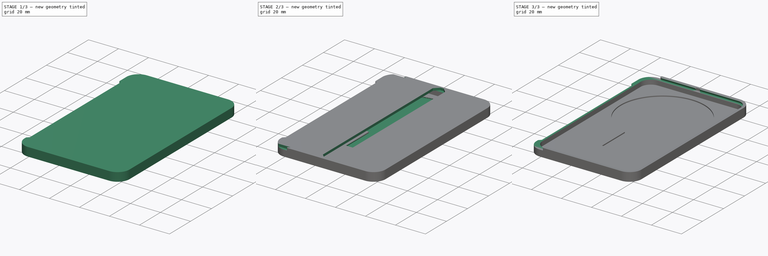
[diagram: build sequence overview — one tinted view per stage of 3, left to right]
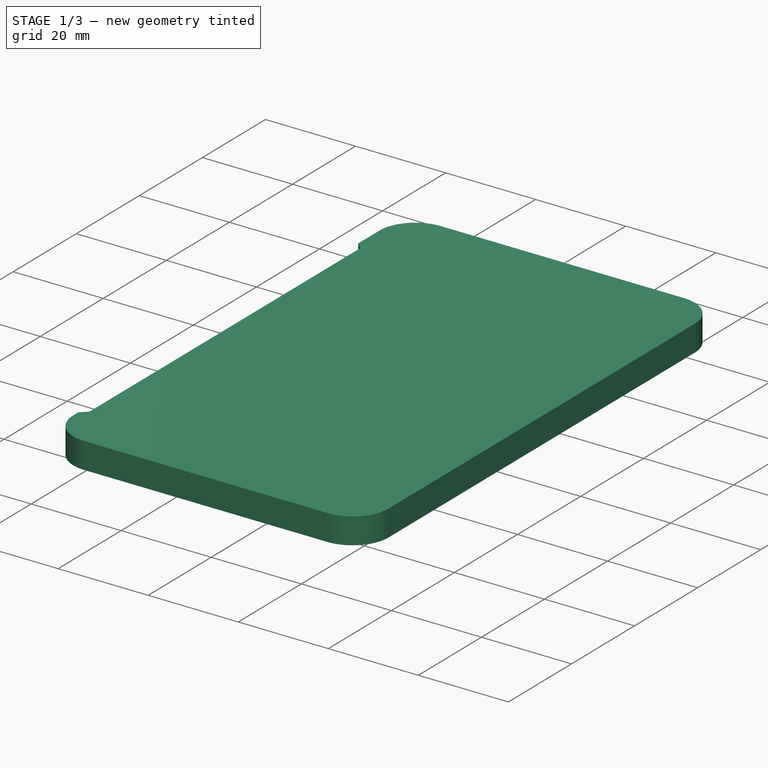
[diagram: stage 1 of 3 — iso view after this stage's code; geometry added in this stage tinted green]
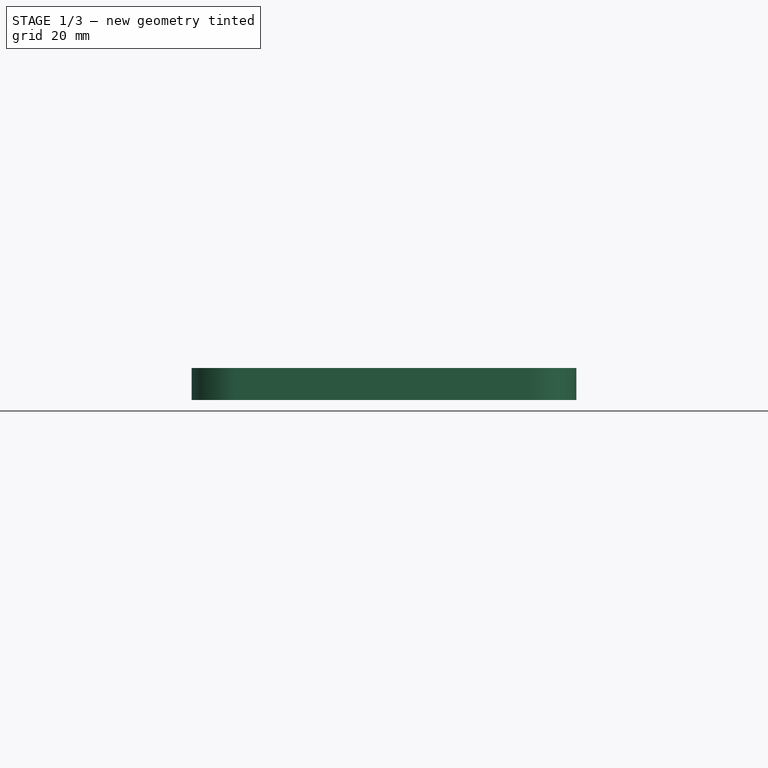
[diagram: stage 1 of 3 — front view after this stage's code; geometry added in this stage tinted green]
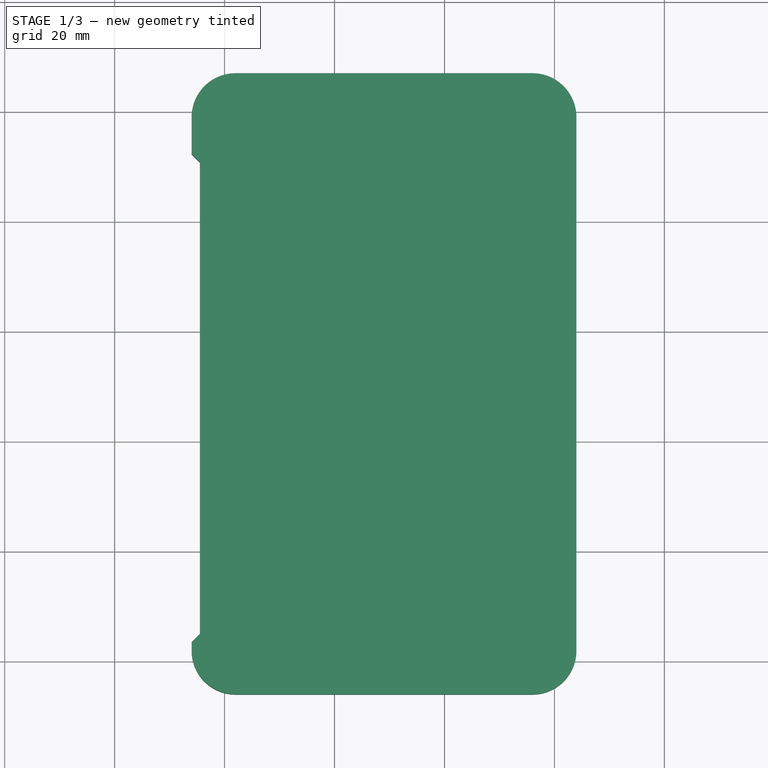
[diagram: stage 1 of 3 — top view after this stage's code; geometry added in this stage tinted green]
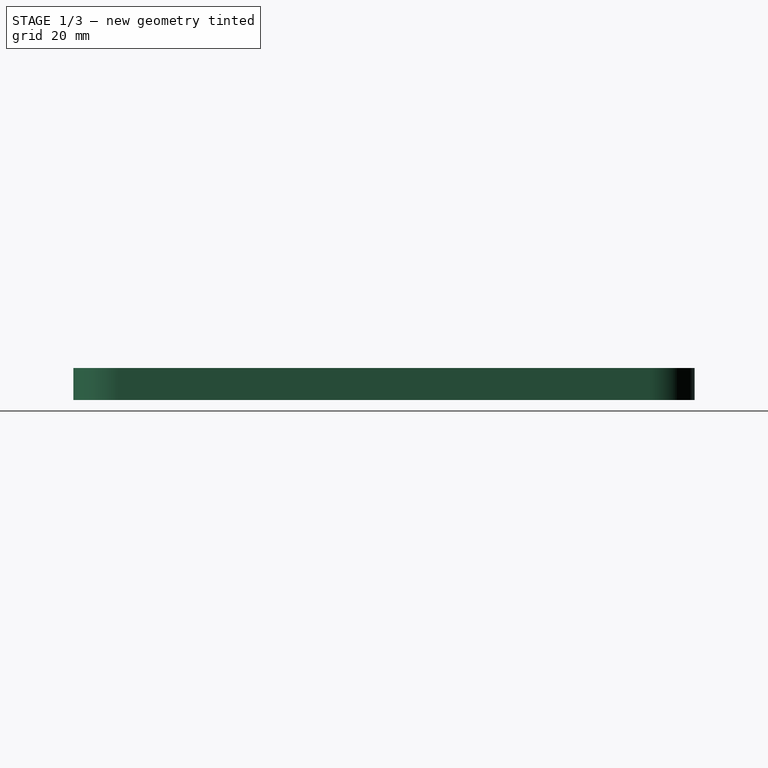
[diagram: stage 1 of 3 — right view after this stage's code; geometry added in this stage tinted green]
FCSTD DOCUMENT  (FreeCAD 0.21R33668 +26 (Git))
Label: Wallter_Drawer
License: All rights reserved
LicenseURL: http://en.wikipedia.org/wiki/All_rights_reserved
objects: Sketcher::SketchObject×7, PartDesign::Pocket×4, App::DocumentObjectGroup×3, PartDesign::CoordinateSystem×3, App::Part×2, Spreadsheet::Sheet×1, App::FeaturePython×1, PartDesign::Pad×1, PartDesign::SubtractivePipe×1, PartDesign::Body×1
note: 23 computed .brp shape members not serialized (recipe doc carries the construction recipe); baked Part::Feature solids carry a one-line shape summary decoded from their .brp

FEATURE [Spreadsheet::Sheet] Spreadsheet  label="vars"
  cells = A1='Variable Description; B1='Alias; C1='Value; A2='Tolerancing - FDM in-layer Outer-surface Offset; B2='xyo; C2(xyo)==0 mm; A3='Tolerancing - FDM in-layer Inner-surface Offset; B3='xyi; C3(xyi)==0.35 mm; A4='Tolerancing - FDM ceiling offset; B4='zc; C4(zc)==-0.4 mm; A5='Tolerancing - FDM floor offset; B5='zf; C5(zf)==0 mm; A6='Tolerancing - clearance gap; B6='clearance_gap; C6(clearance_gap)==0.2 mm; A7='Tolerancing - Interference gap; B7='interference_gap; C7(interference_gap)==0 mm; A8='Tolerancing - generic total tolerance; B8='tol; C8(tol)==0.4 mm
FEATURE [App::DocumentObjectGroup] Parts
FEATURE [PartDesign::CoordinateSystem] LCS_Origin  label="LCS_Assembly"
  AttacherType = Attacher::AttachEngine3D
  MapMode = 2
  Support = -> [X_Axis]
FEATURE [App::DocumentObjectGroup] Constraints
FEATURE [App::FeaturePython] Variables  # WARN: FeaturePython — macro-defined, semantics opaque (R4)
  Type = App::PropertyContainer
FEATURE [App::DocumentObjectGroup] Configurations
FEATURE [PartDesign::CoordinateSystem] LCS_0  label="LCS_Part"
  AttacherType = Attacher::AttachEngine3D
  MapMode = 2
  Support = -> [X_Axis001]
FEATURE [PartDesign::CoordinateSystem] LCS_001  label="LCS_Body"
  AttacherType = Attacher::AttachEngine3D
  MapMode = 2
  Support = -> [X_Axis002]
FEATURE [Sketcher::SketchObject] Sketch
  FullyConstrained = true
  MapMode = 5
  Support = -> [XY_Plane002]
  sketch-geometry (14):
    g0: ArcOfCircle CenterX=2 CenterY=2 CenterZ=0 NormalX=0 NormalY=0 NormalZ=1 AngleXU=0 Radius=8 StartAngle=3.14159 EndAngle=4.71239
    g1: LineSegment StartX=-6 StartY=2 StartZ=0 EndX=-6 EndY=3.5 EndZ=0
    g2: ArcOfCircle CenterX=2 CenterY=99 CenterZ=0 NormalX=0 NormalY=0 NormalZ=1 AngleXU=0 Radius=8 StartAngle=1.5708 EndAngle=3.14159
    g3: LineSegment StartX=2 StartY=107 StartZ=0 EndX=56 EndY=107 EndZ=0
    g4: ArcOfCircle CenterX=56 CenterY=99 CenterZ=0 NormalX=0 NormalY=0 NormalZ=1 AngleXU=0 Radius=8 StartAngle=3e-16 EndAngle=1.5708
    g5: LineSegment StartX=64 StartY=99 StartZ=0 EndX=64 EndY=2 EndZ=0
    g6: ArcOfCircle CenterX=56 CenterY=2 CenterZ=0 NormalX=0 NormalY=0 NormalZ=1 AngleXU=0 Radius=8 StartAngle=4.71239 EndAngle=6.28319
    g7: LineSegment StartX=56 StartY=-6 StartZ=0 EndX=2 EndY=-6 EndZ=0
    g8: GeomPoint X=-6 Y=-6 Z=0
    g9: GeomPoint X=64 Y=107 Z=0
    g10: LineSegment StartX=-6 StartY=92.3 StartZ=0 EndX=-4.5 EndY=90.8 EndZ=0
    g11: LineSegment StartX=-4.5 StartY=90.8 StartZ=0 EndX=-4.5 EndY=5 EndZ=0
    g12: LineSegment StartX=-6 StartY=92.3 StartZ=0 EndX=-6 EndY=99 EndZ=0
    g13: LineSegment StartX=-6 StartY=3.5 StartZ=0 EndX=-4.5 EndY=5 EndZ=0
  constraints (36):
    c: Tangent(g0,g1) = 1.5708
    c: Tangent(g2,g3) = 1.5708
    c: Tangent(g3,g4) = 1.5708
    c: Tangent(g4,g5) = 1.5708
    c: Tangent(g5,g6) = 1.5708
    c: Tangent(g6,g7) = 1.5708
    c: Tangent(g7,g0) = 1.5708
    c: Horizontal(g3)
    c: Horizontal(g7)
    c: Vertical(g1)
    c: Vertical(g5)
    c: Equal(g0,g2)
    c: Equal(g2,g4)
    c: Equal(g4,g6)
    c: PointOnObject(g8,g1)
    c: PointOnObject(g8,g7)
    c: PointOnObject(g9,g3)
    c: PointOnObject(g9,g5)
    c: Radius(g4) = 8
    c: DistanceY(g6,g3) = 113
    c: DistanceX(g0,g5) = 70
    c: DistanceX(g0,g-1) = 6
    c: DistanceY(g0,g-1) = 6
    c: Coincident(g11,g10)
    c: Vertical(g11)
    c: Coincident(g12,g10)
    c: Vertical(g12)
    c: PointOnObject(g2,g1)
    c: Tangent(g12,g2) = 1.5708
    c: Angle(g10,g11) = 2.35619
    c: DistanceX(g10,g10) = 1.5
    c: Coincident(g13,g1)
    c: Coincident(g13,g11)
    c: Equal(g13,g10)
    c: DistanceY(g-1,g10) = 92.3
    c: DistanceY(g1,g10) = 88.8
FEATURE [PartDesign::Pad] Pad
  Direction = (0,0,1)
  Length = 1.6
  Length2 = 4.2
  Profile = -> Sketch
  ReferenceAxis = -> Sketch [N_Axis]
  Type = 4
FEATURE [Sketcher::SketchObject] Sketch001
  ExternalGeometry = -> [Sketch]
  FullyConstrained = false
  MapMode = 5
  Placement = pos=(0,0,0) rot=(0.57735,0.57735,0.57735;2.0944rad)
  Support = -> [YZ_Plane002]
  expr: Constraints[6] = Pad.Length
  sketch-geometry (12):
    g0: LineSegment StartX=-4.8 StartY=-2.2e-15 StartZ=0 EndX=-4.8 EndY=0.4 EndZ=0
    g1: LineSegment StartX=-4.8 StartY=0.4 StartZ=0 EndX=-4.2 EndY=1 EndZ=0
    g2: LineSegment StartX=-4.2 StartY=1 StartZ=0 EndX=-4.2 EndY=1.4 EndZ=0
    g3: LineSegment StartX=-6 StartY=-2.2e-15 StartZ=0 EndX=-6 EndY=1.6 EndZ=0
    g4: LineSegment StartX=50.5 StartY=1.6 StartZ=0 EndX=50.5 EndY=-2.2e-15 EndZ=0
    g5: LineSegment StartX=50.5 StartY=-2.2e-15 StartZ=0 EndX=-4.8 EndY=-2.2e-15 EndZ=0
    g6: LineSegment StartX=-4.2 StartY=1.4 StartZ=0 EndX=-5.33426 EndY=1.6 EndZ=0
    g7: LineSegment StartX=-5.33426 StartY=1.6 StartZ=0 EndX=50.5 EndY=1.6 EndZ=0
    g8: LineSegment StartX=-6 StartY=1.6 StartZ=0 EndX=-4.37261 EndY=2.78576 EndZ=0
    g9: LineSegment StartX=-4.8 StartY=-2.2e-15 StartZ=0 EndX=-3.33426 EndY=-2.2e-15 EndZ=0
    g10: LineSegment StartX=-3.33426 StartY=-2.2e-15 StartZ=0 EndX=-3.33426 EndY=1.6 EndZ=0
    g11: LineSegment StartX=-3.33426 StartY=1.6 StartZ=0 EndX=-5.33426 EndY=1.6 EndZ=0
  constraints (32):
    c: Vertical(g0)
    c: Coincident(g1,g0)
    c: Coincident(g2,g1)
    c: Vertical(g2)
    c: Vertical(g3)
    c: Coincident(g5,g0)
    c: DistanceY(g3,g3) = 1.6
    c: DistanceX(g3,g0) = 1.2
    c: DistanceX(g1,g1) = 0.6
    c: DistanceY(g0,g1) = 1
    c: Angle(g2,g1) = 2.35619
    c: Horizontal(g0,g3)
    c: Coincident(g6,g2)
    c: Coincident(g7,g6)
    c: PointOnObject(g3,g7)
    c: Angle(g6,g7) = 0.174533
    c: DistanceY(g6,g6) = 0.2
    c: Symmetric(g-3,g-4,g4)
    c: Coincident(g3,g-3)
    c: Coincident(g4,g7)
    c: Horizontal(g7)
    c: Coincident(g5,g4)
    c: Horizontal(g5)
    c: Coincident(g8,g3)
    c: Coincident(g9,g0)
    c: PointOnObject(g9,g5)
    c: Coincident(g10,g9)
    c: PointOnObject(g10,g7)
    c: Vertical(g10)
    c: Coincident(g11,g10)
    c: Coincident(g11,g6)
    c: DistanceX(g11,g11) = 2
FEATURE [Sketcher::SketchObject] Sketch002
  ExternalGeometry = -> [Sketch]
  FullyConstrained = true
  MapMode = 5
  Support = -> [XY_Plane002]
  sketch-geometry (14):
    g0: ArcOfCircle CenterX=3.5 CenterY=97.2 CenterZ=0 NormalX=0 NormalY=0 NormalZ=1 AngleXU=0 Radius=6.8 StartAngle=1.5708 EndAngle=3.14159
    g1: LineSegment StartX=3.5 StartY=104 StartZ=0 EndX=56 EndY=104 EndZ=0
    g2: ArcOfCircle CenterX=56 CenterY=97.2 CenterZ=0 NormalX=0 NormalY=0 NormalZ=1 AngleXU=0 Radius=6.8 StartAngle=-9e-16 EndAngle=1.5708
    g3: LineSegment StartX=62.8 StartY=97.2 StartZ=0 EndX=62.8 EndY=3.8 EndZ=0
    g4: ArcOfCircle CenterX=56 CenterY=3.8 CenterZ=0 NormalX=0 NormalY=0 NormalZ=1 AngleXU=0 Radius=6.8 StartAngle=4.71239 EndAngle=6.28319
    g5: LineSegment StartX=56 StartY=-3 StartZ=0 EndX=3.5 EndY=-3 EndZ=0
    g6: ArcOfCircle CenterX=3.5 CenterY=3.8 CenterZ=0 NormalX=0 NormalY=0 NormalZ=1 AngleXU=0 Radius=6.8 StartAngle=3.14159 EndAngle=4.71239
    g7: LineSegment StartX=-3.3 StartY=3.8 StartZ=0 EndX=-3.3 EndY=97.2 EndZ=0
    g8: GeomPoint X=-3.3 Y=104 Z=0
    g9: GeomPoint X=62.8 Y=-3 Z=0
    g10: LineSegment StartX=-4.5 StartY=5 StartZ=0 EndX=-3.3 EndY=5 EndZ=0
    g11: LineSegment StartX=3.5 StartY=-3 StartZ=0 EndX=3.5 EndY=-6 EndZ=0
    g12: LineSegment StartX=62.8 StartY=97.2 StartZ=0 EndX=64 EndY=97.2 EndZ=0
    g13: LineSegment StartX=56 StartY=104 StartZ=0 EndX=56 EndY=107 EndZ=0
  constraints (36):
    c: Tangent(g0,g1) = 1.5708
    c: Tangent(g1,g2) = 1.5708
    c: Tangent(g2,g3) = 1.5708
    c: Tangent(g3,g4) = 1.5708
    c: Tangent(g4,g5) = 1.5708
    c: Tangent(g5,g6) = 1.5708
    c: Tangent(g6,g7) = 1.5708
    c: Tangent(g7,g0) = 1.5708
    c: Horizontal(g1)
    c: Horizontal(g5)
    c: Vertical(g3)
    c: Vertical(g7)
    c: Equal(g0,g2)
    c: Equal(g2,g4)
    c: Equal(g4,g6)
    c: PointOnObject(g8,g1)
    c: PointOnObject(g8,g7)
    c: PointOnObject(g9,g3)
    c: PointOnObject(g9,g5)
    c: DistanceX(g2,g-4) = 1.2
    c: DistanceY(g1,g-4) = 3
    c: Coincident(g10,g-7)
    c: PointOnObject(g10,g7)
    c: Horizontal(g10)
    c: Coincident(g11,g5)
    c: Horizontal(g-6,g11)
    c: Vertical(g11)
    c: Coincident(g12,g2)
    c: Coincident(g13,g1)
    c: Horizontal(g13,g-4)
    c: Vertical(g-4,g12)
    c: Vertical(g13)
    c: Horizontal(g12)
    c: Equal(g13,g11)
    c: Equal(g10,g12)
    c: Vertical(g-4,g2)
FEATURE [PartDesign::Pocket] Pocket001
  BaseFeature = -> Pad
  Direction = (0,0,-1)
  Length = 3
  Length2 = 5
  Profile = -> Sketch002
  ReferenceAxis = -> Sketch002 [N_Axis]
  Type = 0
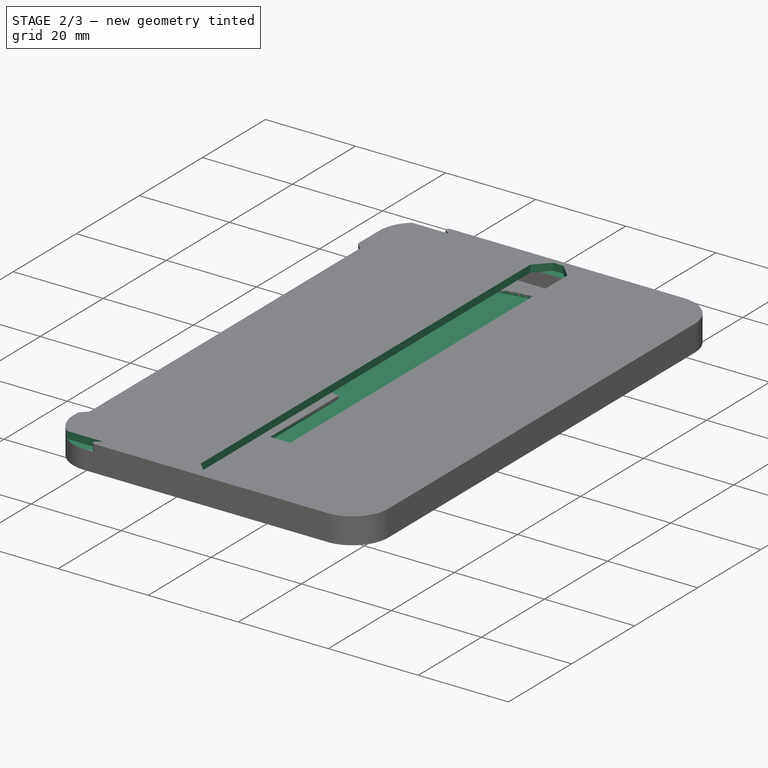
[diagram: stage 2 of 3 — iso view after this stage's code; geometry added in this stage tinted green]
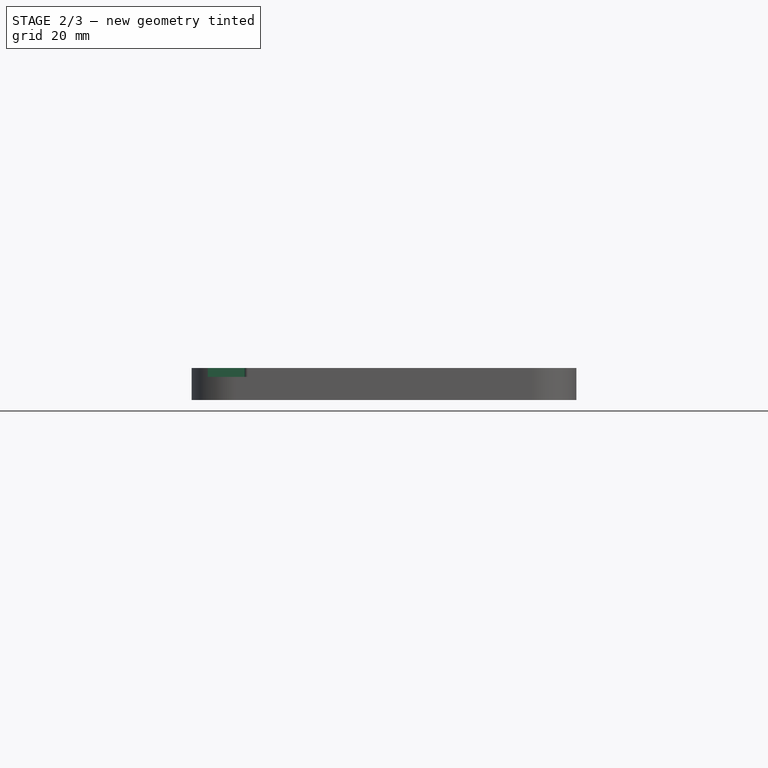
[diagram: stage 2 of 3 — front view after this stage's code; geometry added in this stage tinted green]
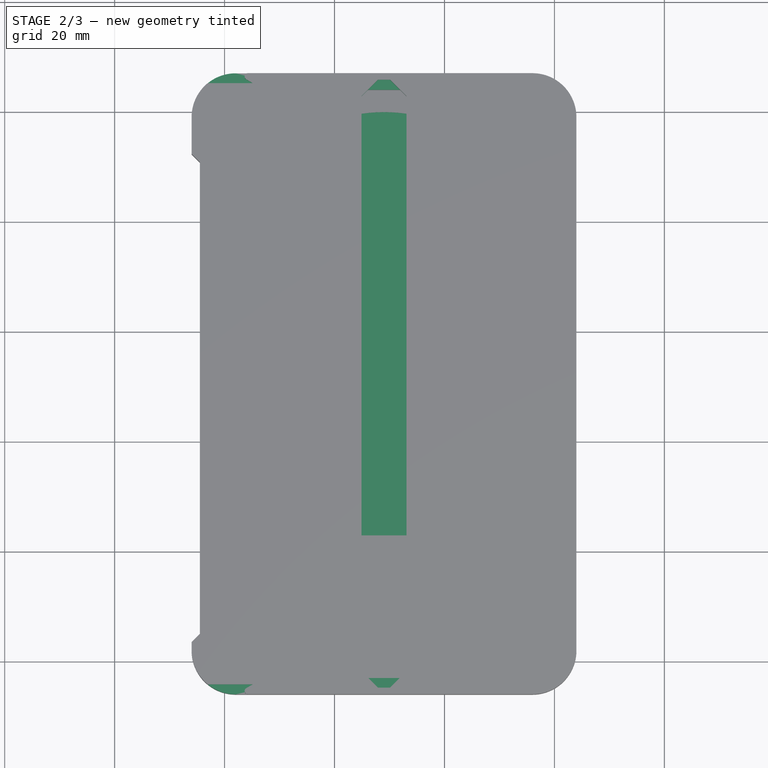
[diagram: stage 2 of 3 — top view after this stage's code; geometry added in this stage tinted green]
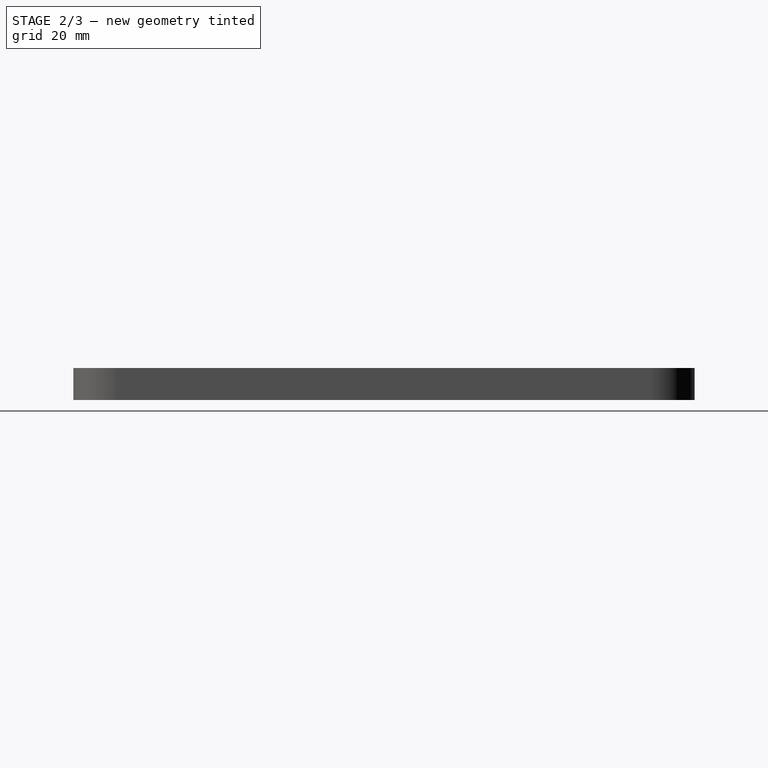
[diagram: stage 2 of 3 — right view after this stage's code; geometry added in this stage tinted green]
FEATURE [Sketcher::SketchObject] Sketch003
  ExternalGeometry = -> [Sketch]
  FullyConstrained = false
  MapMode = 5
  Support = -> [XY_Plane002]
  sketch-geometry (35):
    g0: GeomPoint X=29 Y=107 Z=0
    g1: GeomPoint X=29 Y=-6 Z=0
    g2: LineSegment StartX=2 StartY=50.5 StartZ=0 EndX=56 EndY=50.5 EndZ=0
    g3: LineSegment StartX=24.9 StartY=-1.8 StartZ=0 EndX=24.9 EndY=102.8 EndZ=0
    g4: LineSegment StartX=24.9 StartY=102.8 StartZ=0 EndX=27.9 EndY=105.8 EndZ=0
    g5: LineSegment StartX=27.9 StartY=105.8 StartZ=0 EndX=30.1 EndY=105.8 EndZ=0
    g6: LineSegment StartX=30.1 StartY=105.8 StartZ=0 EndX=33.1 EndY=102.8 EndZ=0
    g7: LineSegment StartX=33.1 StartY=102.8 StartZ=0 EndX=33.1 EndY=-1.8 EndZ=0
    g8: LineSegment StartX=33.1 StartY=-1.8 StartZ=0 EndX=30.1 EndY=-4.8 EndZ=0
    g9: LineSegment StartX=30.1 StartY=-4.8 StartZ=0 EndX=27.9 EndY=-4.8 EndZ=0
    g10: LineSegment StartX=27.9 StartY=-4.8 StartZ=0 EndX=24.9 EndY=-1.8 EndZ=0
    g11: LineSegment StartX=29 StartY=107 StartZ=0 EndX=29 EndY=-6 EndZ=0
    g12: LineSegment StartX=3.93923 StartY=105.88 StartZ=0 EndX=5.11769 EndY=105.2 EndZ=0
    g13: LineSegment StartX=5.11769 StartY=105.2 StartZ=0 EndX=-11.7608 EndY=105.2 EndZ=0
    g14: ArcOfCircle CenterX=4.23923 CenterY=106.4 CenterZ=0 NormalX=0 NormalY=0 NormalZ=1 AngleXU=0 Radius=0.6 StartAngle=1.5708 EndAngle=4.18879
    g15: GeomPoint X=2 Y=107 Z=0
    g16: LineSegment StartX=4.23923 StartY=107 StartZ=0 EndX=-11.7608 EndY=107 EndZ=0
    g17: LineSegment StartX=-11.7608 StartY=107 StartZ=0 EndX=-11.7608 EndY=105.2 EndZ=0
    g18: LineSegment StartX=54.0608 StartY=105.88 StartZ=0 EndX=52.8823 EndY=105.2 EndZ=0
    g19: LineSegment StartX=52.8823 StartY=105.2 StartZ=0 EndX=69.7608 EndY=105.2 EndZ=0
    g20: LineSegment StartX=69.7608 StartY=105.2 StartZ=0 EndX=69.7608 EndY=107 EndZ=0
    g21: LineSegment StartX=69.7608 StartY=107 StartZ=0 EndX=53.7608 EndY=107 EndZ=0
    g22: ArcOfCircle CenterX=53.7608 CenterY=106.4 CenterZ=0 NormalX=0 NormalY=0 NormalZ=1 AngleXU=0 Radius=0.6 StartAngle=5.23599 EndAngle=7.85398
    g23: LineSegment StartX=3.93923 StartY=-4.88038 StartZ=0 EndX=5.11769 EndY=-4.2 EndZ=0
    g24: LineSegment StartX=5.11769 StartY=-4.2 StartZ=0 EndX=-11.7608 EndY=-4.2 EndZ=0
    g25: LineSegment StartX=-11.7608 StartY=-4.2 StartZ=0 EndX=-11.7608 EndY=-6 EndZ=0
    g26: LineSegment StartX=-11.7608 StartY=-6 StartZ=0 EndX=4.23923 EndY=-6 EndZ=0
    g27: ArcOfCircle CenterX=4.23923 CenterY=-5.4 CenterZ=0 NormalX=0 NormalY=0 NormalZ=1 AngleXU=0 Radius=0.6 StartAngle=2.0944 EndAngle=4.71239
    g28: GeomPoint X=45.5077 Y=19.1192 Z=0
    g29: LineSegment StartX=54.0608 StartY=-4.88038 StartZ=0 EndX=52.8823 EndY=-4.2 EndZ=0
    g30: LineSegment StartX=52.8823 StartY=-4.2 StartZ=0 EndX=69.7608 EndY=-4.2 EndZ=0
    g31: LineSegment StartX=69.7608 StartY=-4.2 StartZ=0 EndX=69.7608 EndY=-6 EndZ=0
    g32: LineSegment StartX=69.7608 StartY=-6 StartZ=0 EndX=53.7608 EndY=-6 EndZ=0
    g33: ArcOfCircle CenterX=53.7608 CenterY=-5.4 CenterZ=0 NormalX=0 NormalY=0 NormalZ=1 AngleXU=0 Radius=0.6 StartAngle=4.71239 EndAngle=7.33038
    g34: GeomPoint X=-51.012 Y=55.7834 Z=0
  constraints (72):
    c: Horizontal(g2)
    c: Coincident(g4,g3)
    c: Coincident(g5,g4)
    c: Coincident(g6,g5)
    c: Coincident(g7,g6)
    c: Coincident(g8,g7)
    c: Coincident(g9,g8)
    c: Coincident(g10,g9)
    c: Coincident(g10,g3)
    c: Coincident(g11,g0)
    c: Coincident(g11,g1)
    c: Symmetric(g4,g5,g11)
    c: Symmetric(g3,g3,g2)
    c: Symmetric(g6,g7,g2)
    c: Symmetric(g9,g8,g11)
    c: DistanceY(g5,g0) = 1.2
    c: DistanceX(g4,g5) = 2.2
    c: Angle(g4,g5) = 2.35619
    c: DistanceY(g4,g4) = 3
    c: Symmetric(g3,g6,g11)
    c: Symmetric(g8,g5,g2)
    c: Coincident(g13,g12)
    c: Horizontal(g13)
    c: PointOnObject(g15,g12)
    c: Tangent(g12,g14) = -1.5708
    c: Radius(g14) = 0.6
    c: Horizontal(g16)
    c: Coincident(g17,g16)
    c: Coincident(g17,g13)
    c: Vertical(g17)
    c: Tangent(g16,g14) = -1.5708
    c: DistanceY(g17,g17) = 1.8
    c: PointOnObject(g15,g16)
    c: Coincident(g19,g18)
    c: Coincident(g20,g19)
    c: Coincident(g21,g20)
    c: Tangent(g18,g22) = 1.5708
    c: Tangent(g22,g21) = -1.5708
    c: Equal(g14,g22)
    c: Symmetric(g20,g16,g11)
    c: Symmetric(g13,g19,g11)
    c: Symmetric(g12,g18,g11)
    c: Symmetric(g21,g14,g11)
    c: Coincident(g24,g23)
    c: Coincident(g25,g24)
    c: Coincident(g26,g25)
    c: PointOnObject(g28,g23)
    c: Tangent(g23,g27) = 1.5708
    c: Equal(g14,g27)
    c: Tangent(g27,g26) = -1.5708
    c: Symmetric(g26,g14,g2)
    c: Symmetric(g12,g23,g2)
    c: Symmetric(g25,g16,g2)
    c: Symmetric(g24,g13,g2)
    c: Coincident(g30,g29)
    c: Coincident(g31,g30)
    c: Coincident(g32,g31)
    c: PointOnObject(g34,g29)
    c: Tangent(g29,g33) = -1.5708
    c: Tangent(g32,g33) = 1.5708
    c: Symmetric(g32,g21,g2)
    c: Equal(g33,g22)
    c: Symmetric(g29,g18,g2)
    c: Symmetric(g20,g31,g2)
    c: Symmetric(g30,g19,g2)
    c: Symmetric(g-3,g-3,g0)
    c: Symmetric(g-4,g-4,g1)
    c: Symmetric(g-3,g-4,g2)
    c: Equal(g2,g-4)
    c: Coincident(g15,g-3)
    c: Angle(g12,g13) = 0.523599
    c: DistanceX(g16,g16) = 16
FEATURE [PartDesign::Pocket] Pocket002
  BaseFeature = -> Pocket001
  Direction = (0,0,-1)
  Length = 10
  Length2 = 5
  Profile = -> Sketch003
  ReferenceAxis = -> Sketch003 [N_Axis]
  Reversed = true
  Type = 0
FEATURE [Sketcher::SketchObject] Sketch004
  ExternalGeometry = -> [Sketch]
  FullyConstrained = true
  MapMode = 5
  Support = -> [XY_Plane002]
  sketch-geometry (12):
    g0: ArcOfCircle CenterX=29 CenterY=72 CenterZ=0 NormalX=0 NormalY=0 NormalZ=1 AngleXU=0 Radius=27 StartAngle=4.82373 EndAngle=10.8842
    g1: LineSegment StartX=32 StartY=45.1672 StartZ=0 EndX=32 EndY=25 EndZ=0
    g2: LineSegment StartX=32 StartY=25 StartZ=0 EndX=26 EndY=25 EndZ=0
    g3: LineSegment StartX=26 StartY=25 StartZ=0 EndX=26 EndY=45.1672 EndZ=0
    g4: LineSegment StartX=29 StartY=-6 StartZ=0 EndX=29 EndY=107 EndZ=0
    g5: GeomPoint X=29 Y=99 Z=0
    g6: Circle CenterX=29 CenterY=72 CenterZ=0 NormalX=0 NormalY=0 NormalZ=1 AngleXU=0 Radius=23
    g7: ArcOfCircle CenterX=29 CenterY=72 CenterZ=0 NormalX=0 NormalY=0 NormalZ=1 AngleXU=0 Radius=28 StartAngle=4.92835 EndAngle=10.7796
    g8: LineSegment StartX=35 StartY=44.6504 StartZ=0 EndX=35 EndY=23 EndZ=0
    g9: LineSegment StartX=35 StartY=23 StartZ=0 EndX=23 EndY=23 EndZ=0
    g10: LineSegment StartX=23 StartY=23 StartZ=0 EndX=23 EndY=44.6504 EndZ=0
    g11: LineSegment StartX=26 StartY=41 StartZ=0 EndX=32 EndY=41 EndZ=0
  constraints (33):
    c: Coincident(g1,g2)
    c: Coincident(g2,g3)
    c: Vertical(g1)
    c: Vertical(g3)
    c: Coincident(g0,g3)
    c: Coincident(g0,g1)
    c: PointOnObject(g0,g4)
    c: Symmetric(g2,g1,g4)
    c: Diameter(g0) = 54
    c: PointOnObject(g5,g0)
    c: PointOnObject(g5,g4)
    c: DistanceY(g1,g5) = 74
    c: Coincident(g6,g0)
    c: Diameter(g6) = 46
    c: DistanceY(g0,g4) = 35
    c: DistanceX(g2,g2) = 6
    c: Coincident(g7,g0)
    c: Coincident(g8,g7)
    c: Vertical(g8)
    c: Coincident(g9,g8)
    c: Coincident(g10,g9)
    c: Coincident(g10,g7)
    c: Vertical(g10)
    c: Symmetric(g9,g8,g4)
    c: Diameter(g7) = 56
    c: DistanceX(g9,g9) = 12
    c: DistanceY(g8,g1) = 2
    c: PointOnObject(g11,g3)
    c: PointOnObject(g11,g1)
    c: Horizontal(g11)
    c: DistanceY(g11,g7) = 31
    c: Symmetric(g-4,g-4,g4)
    c: Symmetric(g-3,g-3,g4)
FEATURE [PartDesign::Pocket] Pocket003
  BaseFeature = -> Pocket002
  Direction = (0,0,-1)
  Length = 3.7
  Length2 = 5
  Profile = -> Sketch004
  ReferenceAxis = -> Sketch004 [N_Axis]
  Type = 0
  expr: Length = Pocket001.Length + 0.7 mm
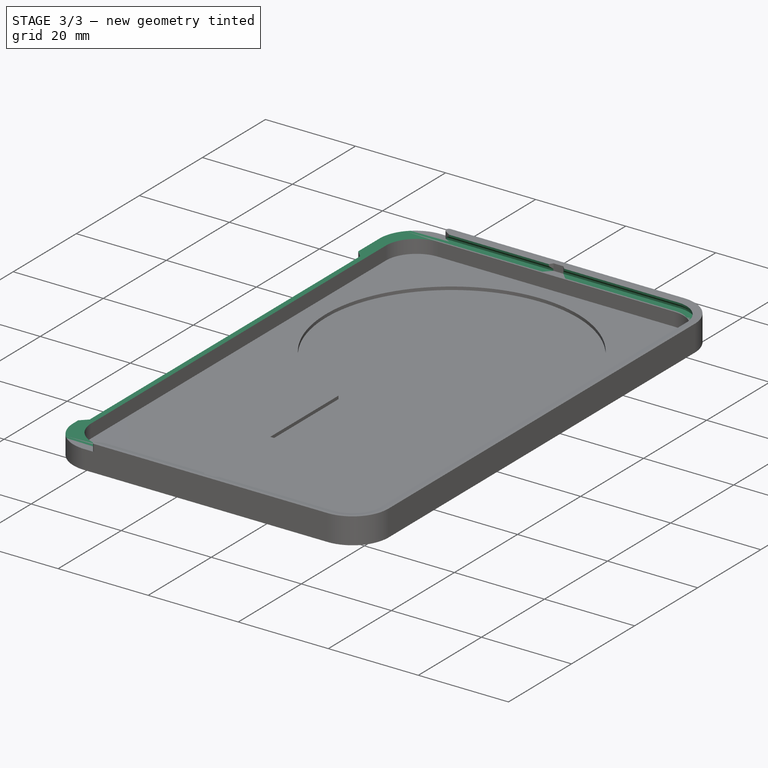
[diagram: stage 3 of 3 — iso view after this stage's code; geometry added in this stage tinted green]
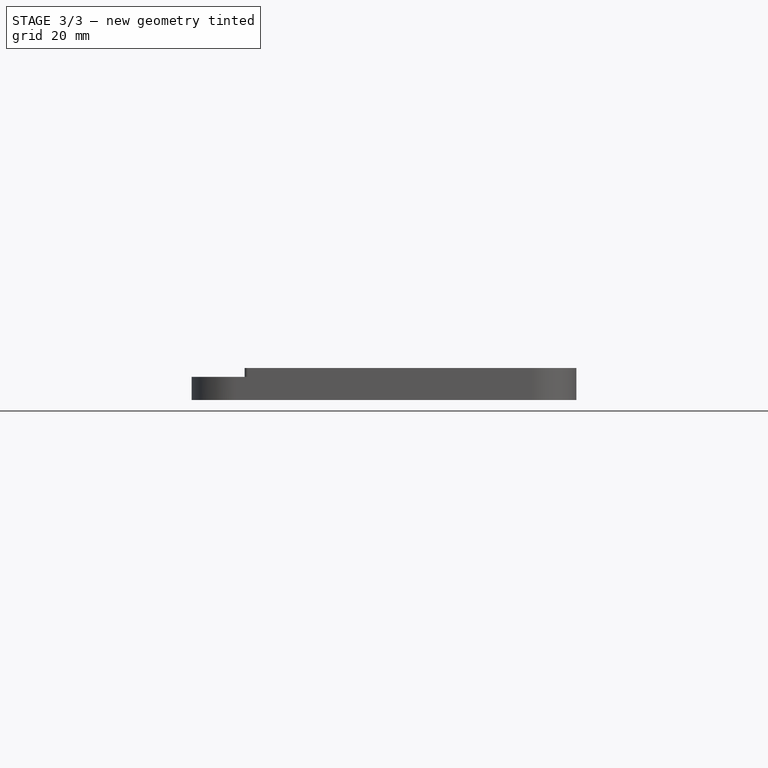
[diagram: stage 3 of 3 — front view after this stage's code; geometry added in this stage tinted green]
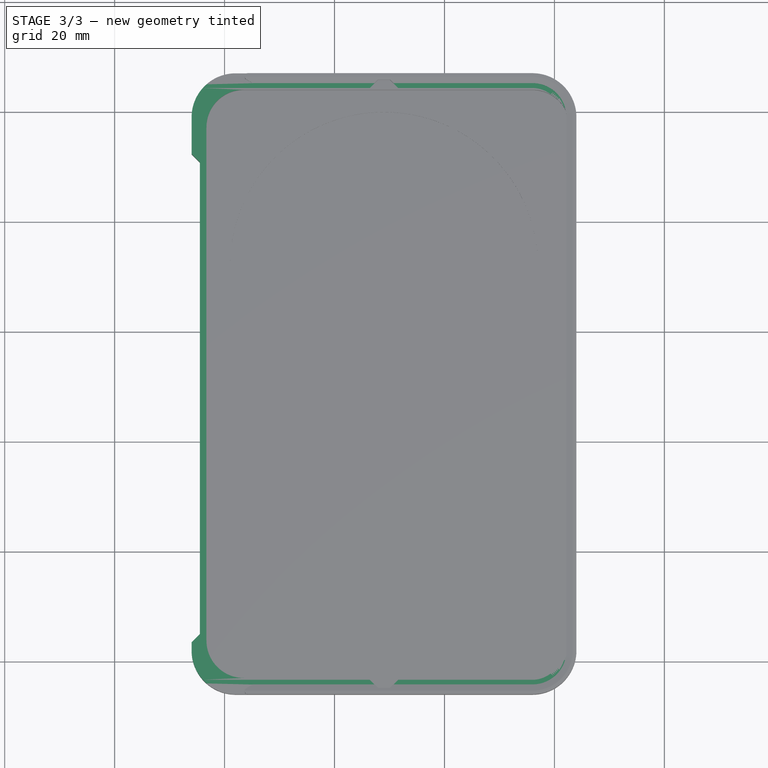
[diagram: stage 3 of 3 — top view after this stage's code; geometry added in this stage tinted green]
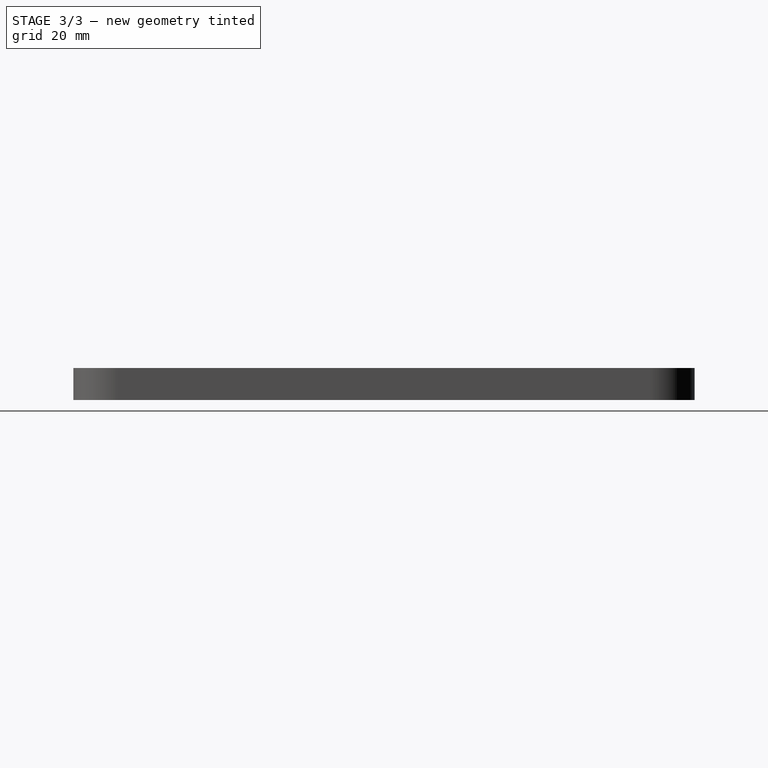
[diagram: stage 3 of 3 — right view after this stage's code; geometry added in this stage tinted green]
FEATURE [Sketcher::SketchObject] Sketch005
  ExternalGeometry = -> [Sketch]
  FullyConstrained = true
  MapMode = 5
  Support = -> [XY_Plane002]
  sketch-geometry (5):
    g0: LineSegment StartX=-6 StartY=-6 StartZ=0 EndX=56 EndY=-6 EndZ=0
    g1: LineSegment StartX=64 StartY=2 StartZ=0 EndX=64 EndY=99 EndZ=0
    g2: LineSegment StartX=56 StartY=107 StartZ=0 EndX=-6 EndY=107 EndZ=0
    g3: ArcOfCircle CenterX=56 CenterY=2 CenterZ=0 NormalX=0 NormalY=0 NormalZ=1 AngleXU=0 Radius=8 StartAngle=4.71239 EndAngle=6.28319
    g4: ArcOfCircle CenterX=56 CenterY=99 CenterZ=0 NormalX=0 NormalY=0 NormalZ=1 AngleXU=0 Radius=8 StartAngle=8e-16 EndAngle=1.5708
  constraints (12):
    c: Coincident(g0,g-3)
    c: Coincident(g1,g-3)
    c: Coincident(g1,g-4)
    c: Coincident(g2,g-4)
    c: Coincident(g3,g1)
    c: Equal(g-3,g3)
    c: Coincident(g4,g1)
    c: Equal(g-4,g4)
    c: Tangent(g4,g2) = -1.5708
    c: Tangent(g3,g0) = -1.5708
    c: PointOnObject(g0,g-5)
    c: Vertical(g2,g0)
FEATURE [PartDesign::SubtractivePipe] SubtractivePipe
  AuxilleryCurvelinear = true
  AuxillerySpineTangent = false
  BaseFeature = -> Pocket003
  Binormal = (0,0,0)
  Mode = 0
  Profile = -> Sketch001
  Spine = -> Sketch005
  SpineTangent = false
  Transformation = 0
  Transition = 0
FEATURE [Sketcher::SketchObject] Sketch006
  ExternalGeometry = -> [Sketch]
  FullyConstrained = true
  MapMode = 5
  Support = -> [XY_Plane002]
  sketch-geometry (9):
    g0: LineSegment StartX=-6 StartY=-4 StartZ=0 EndX=56 EndY=-4 EndZ=0
    g1: LineSegment StartX=62 StartY=2 StartZ=0 EndX=62 EndY=99 EndZ=0
    g2: LineSegment StartX=56 StartY=105 StartZ=0 EndX=-6 EndY=105 EndZ=0
    g3: LineSegment StartX=-6 StartY=105 StartZ=0 EndX=-6 EndY=-4 EndZ=0
    g4: LineSegment StartX=2 StartY=107 StartZ=0 EndX=2 EndY=105 EndZ=0
    g5: ArcOfCircle CenterX=56 CenterY=99 CenterZ=0 NormalX=0 NormalY=0 NormalZ=1 AngleXU=0 Radius=6 StartAngle=7e-16 EndAngle=1.5708
    g6: GeomPoint X=62 Y=105 Z=0
    g7: ArcOfCircle CenterX=56 CenterY=2 CenterZ=0 NormalX=0 NormalY=0 NormalZ=1 AngleXU=0 Radius=6 StartAngle=4.71239 EndAngle=6.28319
    g8: GeomPoint X=62 Y=-4 Z=0
  constraints (21):
    c: Coincident(g2,g3)
    c: Coincident(g3,g0)
    c: Horizontal(g0)
    c: Horizontal(g2)
    c: Vertical(g1)
    c: Vertical(g3)
    c: PointOnObject(g-3,g3)
    c: Coincident(g4,g-3)
    c: PointOnObject(g4,g2)
    c: Vertical(g4)
    c: DistanceY(g4,g4) = 2
    c: PointOnObject(g6,g1)
    c: PointOnObject(g6,g2)
    c: Tangent(g1,g5) = -1.5708
    c: Tangent(g2,g5) = -1.5708
    c: PointOnObject(g8,g0)
    c: PointOnObject(g8,g1)
    c: Tangent(g0,g7) = -1.5708
    c: Tangent(g1,g7) = -1.5708
    c: Coincident(g7,g-6)
    c: Coincident(g5,g-4)
FEATURE [PartDesign::Pocket] Pocket
  BaseFeature = -> SubtractivePipe
  Direction = (0,0,-1)
  Length = 5
  Length2 = 5
  Profile = -> Sketch006
  ReferenceAxis = -> Sketch006 [N_Axis]
  Reversed = true
  Type = 0
FEATURE [PartDesign::Body] Body
  Group = -> [LCS_001,Sketch,Pad,Sketch001,Sketch002,Pocket001,Sketch003,Pocket002,Sketch004,Pocket003,Sketch005,SubtractivePipe,Sketch006,Pocket]
  Origin = -> Origin002
  Tip = -> Pocket
FEATURE [App::Part] Part
  Group = -> [LCS_0,Body]
  Origin = -> Origin001
FEATURE [App::Part] Assembly
  AssemblyType = Part::Link
  Group = -> [LCS_Origin,Constraints,Variables,Configurations,Part]
  Origin = -> Origin
  Type = Assembly
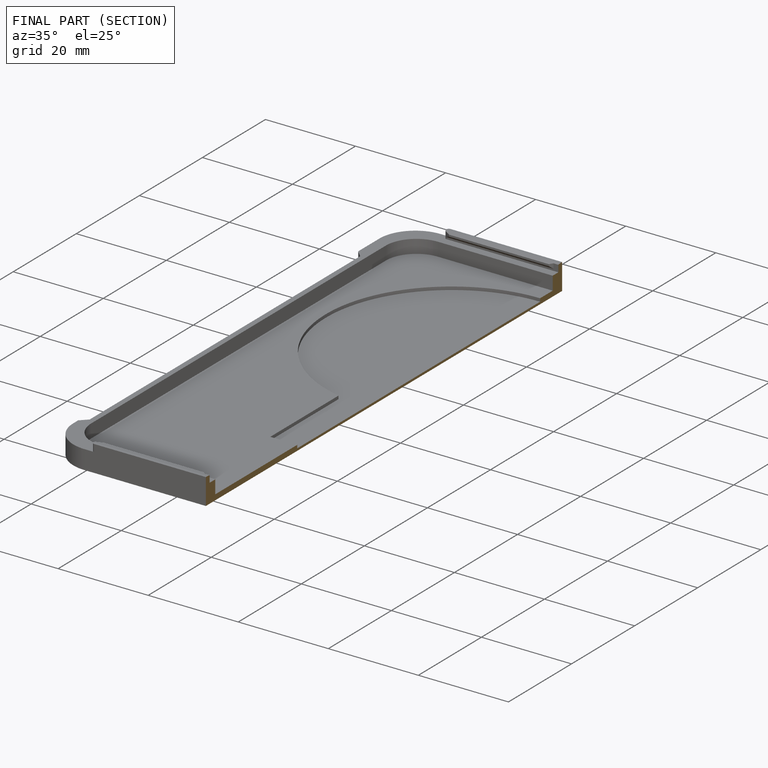
[diagram: finished part — half-section view (interior)]
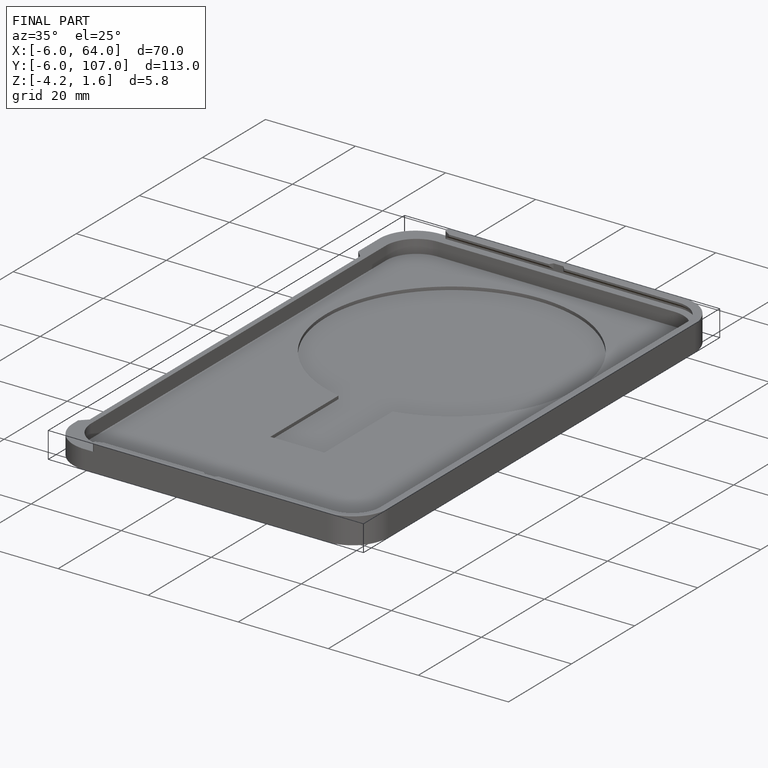
[diagram: finished part — iso view with bounding-box wireframe]
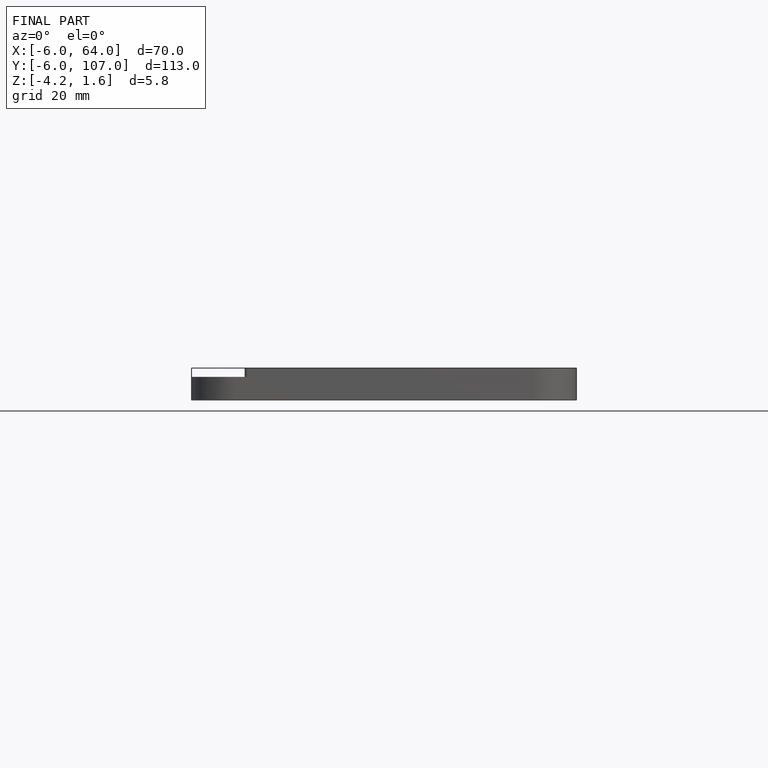
[diagram: finished part — front view with bounding-box wireframe]
